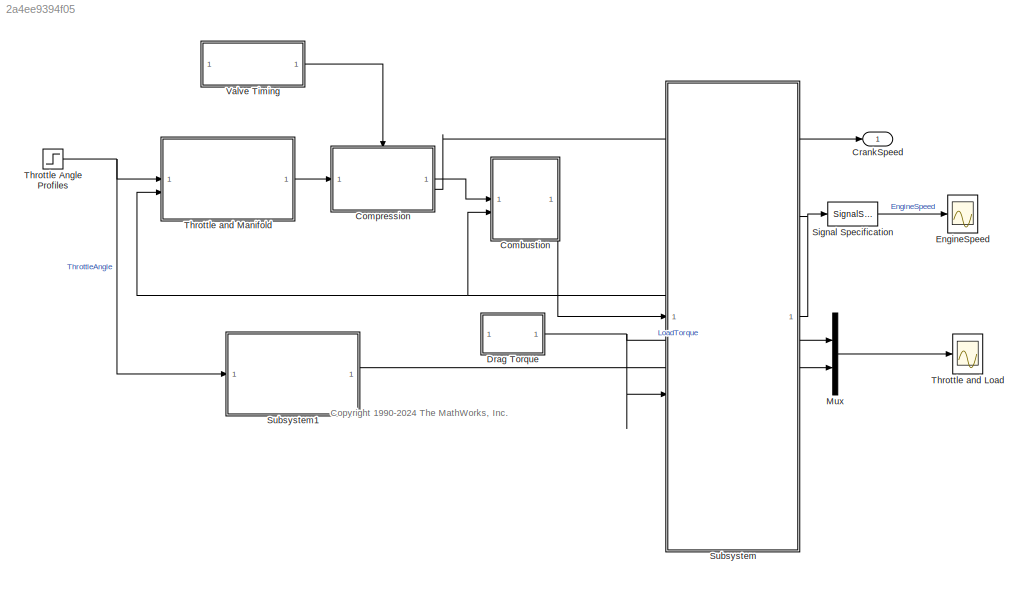
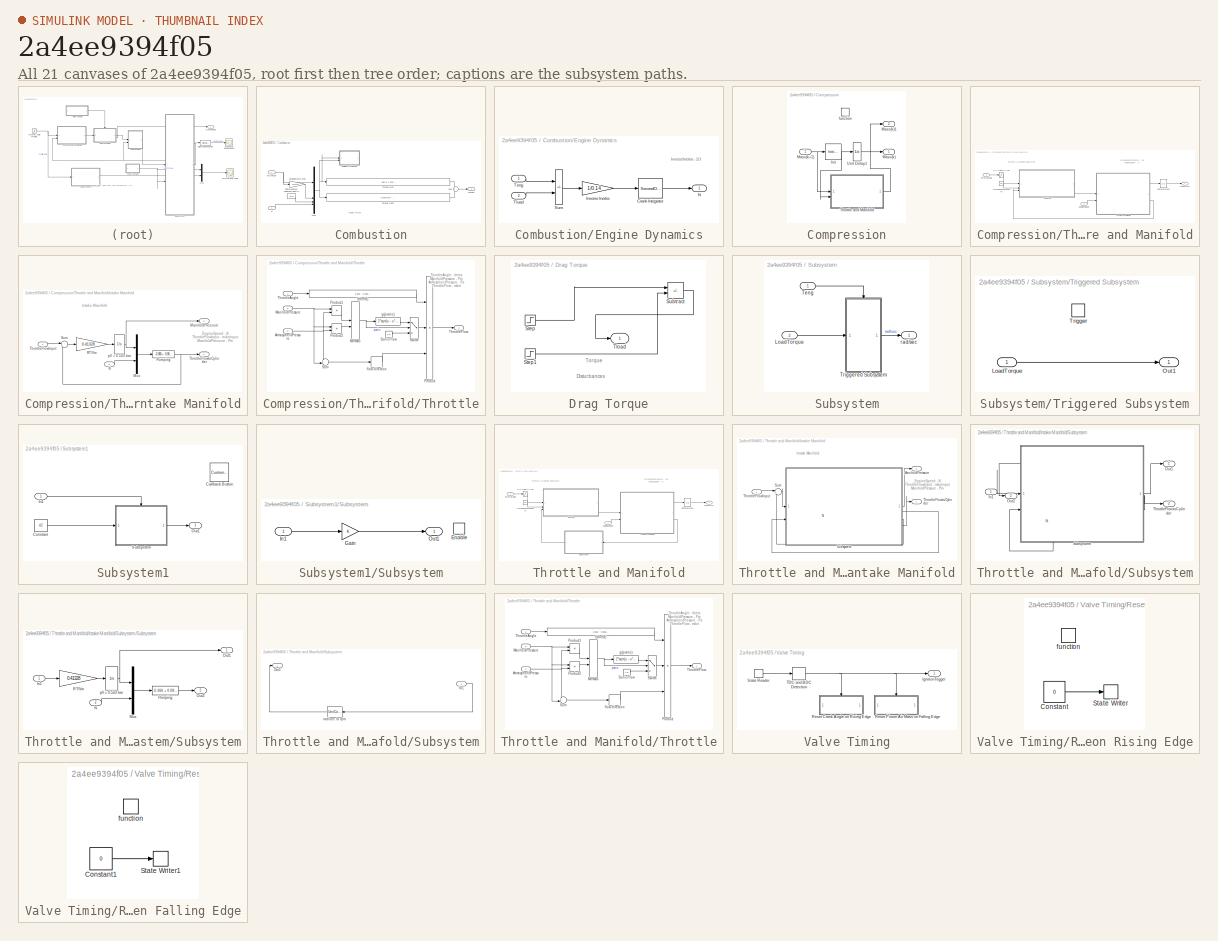
[diagram: thumbnail index - all 21 canvases of the model, root first then tree order]
MODEL slx_2a4ee9394f05
KIND model
CONFIG AbsTol = 1e-6
CONFIG EnableMultiTasking = off
CONFIG FixedStep = auto
CONFIG MaxStep = auto
CONFIG MinStep = auto
CONFIG RelTol = 1e-3
CONFIG SampleTimeConstraint = Unconstrained
CONFIG SolverName = ode45
CONFIG StartTime = 0.0
CONFIG StopTime = 9.9
BLOCK [SubSystem] Combustion
BLOCK [Inport] Combustion/AirCharge
BLOCK [SubSystem] Combustion/Engine Dynamics
BLOCK [SecondOrderIntegrator] Combustion/Engine Dynamics/Crank Integrator
  ICDXDT = 209.48
  ICX = 0
  ShowOutput = dxdt
  StateNameDXDT = 'CrankAngleVelocity'
  StateNameX = 'CrankAngle'
BLOCK [Gain] Combustion/Engine Dynamics/Inverse Inertia
  Gain = 1/0.14
  OutDataTypeStr = Inherit: Same as input
  ParamDataTypeStr = Inherit: Same as input
  SaturateOnIntegerOverflow = on
BLOCK [Outport] Combustion/Engine Dynamics/N
  InitialOutput = 0
  Unit = rad/sec
  VectorParamsAs1DForOutWhenUnconnected = off
BLOCK [Sum] Combustion/Engine Dynamics/Sum
  IconShape = rectangular
  InputSameDT = on
  Inputs = +-
  OutDataTypeStr = Inherit: Same as first input
  SaturateOnIntegerOverflow = on
BLOCK [Inport] Combustion/Engine Dynamics/Teng
BLOCK [Inport] Combustion/Engine Dynamics/Tload
  Port = 2
BLOCK [Mux] Combustion/Mux
  DisplayOption = bar
BLOCK [Inport] Combustion/N
  Port = 2
BLOCK [Constant] Combustion/SparkAdvance (degrees BTDC)
  Value = 15.0
BLOCK [Gain] Combustion/Stoichiometric Fuel
  Gain = 1/14.6
  OutDataTypeStr = Inherit: Same as input
  ParamDataTypeStr = Inherit: Same as input
  SaturateOnIntegerOverflow = on
BLOCK [Sum] Combustion/Sum
  InputSameDT = on
  OutDataTypeStr = Inherit: Same as first input
  SaturateOnIntegerOverflow = on
BLOCK [Outport] Combustion/Torque
  InitialOutput = 0
  VectorParamsAs1DForOutWhenUnconnected = off
BLOCK [Fcn] Combustion/Torque Gen
  Expr = -181.3 + 379.36*u[1] + 21.91*u[1]/u[2] - (0.85*u[1]*u[1])/(u[2]*u[2]) + 0.26*u[3] - 0.0028*u[3]*u[3]
BLOCK [Fcn] Combustion/Torque Gen2
  Expr = 0.027*u[4] - 0.000107*u[4]*u[4] + 0.00048*u[4]*u[3] + 2.55*u[3]*u[1] - 0.05*u[3]*u[3]*u[1]
BLOCK [SubSystem] Compression
  TreatAsAtomicUnit = on
BLOCK [InitialCondition] Compression/Init
  Value = 0.152
BLOCK [Outport] Compression/Mass(k)
  InitialOutput = 0.152
  VectorParamsAs1DForOutWhenUnconnected = off
BLOCK [Outport] Compression/Mass(k)1
  InitialOutput = 0.152
  Port = 2
  VectorParamsAs1DForOutWhenUnconnected = off
BLOCK [Inport] Compression/Mass(k+1)
BLOCK [SubSystem] Compression/Throttle and Manifold
BLOCK [Saturate] Compression/Throttle and Manifold/0 <= theta <= 90
  LowerLimit = 0
  NameLocation = top
  UpperLimit = 90
BLOCK [Constant] Compression/Throttle and Manifold/AtmosphericPressure
  Value = 1.0
BLOCK [Inport] Compression/Throttle and Manifold/EngineSpeed
  Port = 2
BLOCK [SubSystem] Compression/Throttle and Manifold/Intake Manifold
BLOCK [Outport] Compression/Throttle and Manifold/Intake Manifold/ManifoldPressure
  InitialOutput = 0
  Port = 2
  VectorParamsAs1DForOutWhenUnconnected = off
BLOCK [Mux] Compression/Throttle and Manifold/Intake Manifold/Mux
  DisplayOption = bar
  Inputs = 2
BLOCK [Inport] Compression/Throttle and Manifold/Intake Manifold/N
  Port = 2
  Unit = rad/sec
BLOCK [Fcn] Compression/Throttle and Manifold/Intake Manifold/Pumping
  Expr = -0.366 + 0.08979*u[1]*u[2] - 0.0337*u[2]*u[1]*u[1] + 0.0001*u[1]*u[2]*u[2]
BLOCK [Gain] Compression/Throttle and Manifold/Intake Manifold/RT//Vm
  Gain = 0.41328
  OutDataTypeStr = Inherit: Same as input
  ParamDataTypeStr = Inherit: Same as input
  SaturateOnIntegerOverflow = on
BLOCK [Sum] Compression/Throttle and Manifold/Intake Manifold/Sum
  InputSameDT = on
  Inputs = |+-
  OutDataTypeStr = Inherit: Same as first input
  SaturateOnIntegerOverflow = on
BLOCK [Inport] Compression/Throttle and Manifold/Intake Manifold/ThrottleFlowInput
BLOCK [Outport] Compression/Throttle and Manifold/Intake Manifold/ThrottleFlowtoCylinder 
  InitialOutput = 0
  Unit = g/s
  VectorParamsAs1DForOutWhenUnconnected = off
BLOCK [Integrator] Compression/Throttle and Manifold/Intake Manifold/p0 = 0.543 bar
  InitialCondition = .543
BLOCK [Outport] Compression/Throttle and Manifold/Mass(k+1)
  InitialOutput = 0
  VectorParamsAs1DForOutWhenUnconnected = off
BLOCK [Integrator] Compression/Throttle and Manifold/PistonAirMass
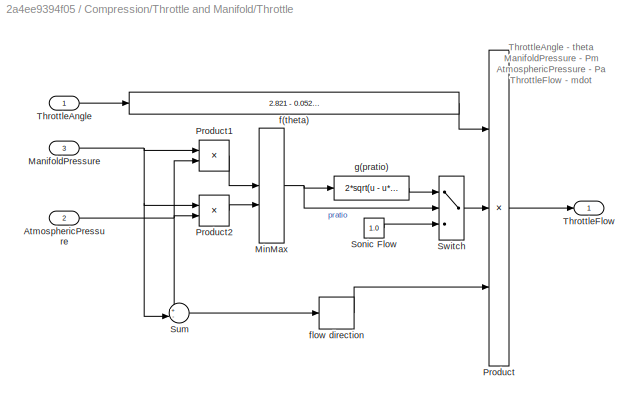
BLOCK [SubSystem] Compression/Throttle and Manifold/Throttle
BLOCK [Inport] Compression/Throttle and Manifold/Throttle/AtmosphericPressure 
  Port = 2
  Unit = bar
BLOCK [Inport] Compression/Throttle and Manifold/Throttle/ManifoldPressure
  Port = 3
  Unit = bar
BLOCK [MinMax] Compression/Throttle and Manifold/Throttle/MinMax
  InputSameDT = on
  Inputs = 2
  SaturateOnIntegerOverflow = on
BLOCK [Product] Compression/Throttle and Manifold/Throttle/Product
  InputSameDT = on
  Inputs = 3
  OutDataTypeStr = Inherit: Same as first input
  RndMeth = Zero
  SaturateOnIntegerOverflow = on
BLOCK [Product] Compression/Throttle and Manifold/Throttle/Product1
  InputSameDT = on
  Inputs = */
  OutDataTypeStr = Inherit: Same as first input
  RndMeth = Zero
  SaturateOnIntegerOverflow = on
BLOCK [Product] Compression/Throttle and Manifold/Throttle/Product2
  InputSameDT = on
  Inputs = /*
  OutDataTypeStr = Inherit: Same as first input
  RndMeth = Zero
  SaturateOnIntegerOverflow = on
BLOCK [Constant] Compression/Throttle and Manifold/Throttle/Sonic Flow 
  Value = 1.0
BLOCK [Sum] Compression/Throttle and Manifold/Throttle/Sum
  InputSameDT = on
  Inputs = +-|
  OutDataTypeStr = Inherit: Same as first input
  SaturateOnIntegerOverflow = on
BLOCK [Switch] Compression/Throttle and Manifold/Throttle/Switch
  Threshold = 0.5
BLOCK [Inport] Compression/Throttle and Manifold/Throttle/ThrottleAngle
  Unit = deg
BLOCK [Outport] Compression/Throttle and Manifold/Throttle/ThrottleFlow
  InitialOutput = 0
  Unit = g/s
  VectorParamsAs1DForOutWhenUnconnected = off
BLOCK [Fcn] Compression/Throttle and Manifold/Throttle/f(theta)
  Expr = 2.821 - 0.05231*u + 0.10299*u*u - 0.00063*u*u*u
  NameLocation = top
BLOCK [Signum] Compression/Throttle and Manifold/Throttle/flow direction
BLOCK [Fcn] Compression/Throttle and Manifold/Throttle/g(pratio)
  Expr = 2*sqrt(u - u*u)
  NameLocation = top
BLOCK [Inport] Compression/Throttle and Manifold/ThrottleAngle
  Unit = deg
BLOCK [UnitDelay] Compression/Unit Delay1
  HasFrameUpgradeWarning = on
  InitialCondition = 0.152
  SampleTime = -1
BLOCK [TriggerPort] Compression/function
  InitialTriggerSignalState = zero
  StatesWhenEnabling = held
  VariantControl = (inherit)
BLOCK [Outport] CrankSpeed
  InitialOutput = 0
  VectorParamsAs1DForOutWhenUnconnected = off
BLOCK [SubSystem] Drag Torque
BLOCK [Step] Drag Torque/Step
  After = 20
  Before = 25
  SampleTime = 0
  Time = 2
BLOCK [Step] Drag Torque/Step1
  After = 5
  SampleTime = 0
  Time = 8
BLOCK [Sum] Drag Torque/Subtract
  IconShape = rectangular
  Inputs = +-
BLOCK [Outport] Drag Torque/Tload
  InitialOutput = 0
  Unit = N*m
  VectorParamsAs1DForOutWhenUnconnected = off
BLOCK [Scope] EngineSpeed
  Floating = off
  NumInputPorts = 1
  ScopeSpecificationString = Simulink.scopes.TimeScopeBlockCfg('CurrentConfiguration', extmgr.ConfigurationSet(extmgr.Configuration('Core','General UI',true),extmgr.Configuration('Core','Source UI',true),extmgr.Configuration('Sources','WiredSimulink',true,'DataLoggingVariableName','ScopeData1','DataLoggingSaveFormat','Structure','DataLoggingDecimation','1','DataLoggingDecimateData',true),extmgr.Configuration('Visuals','Time D...<+1878ch>
BLOCK [Mux] Mux
  DisplayOption = bar
  Inputs = 2
BLOCK [SignalSpecification] Signal Specification
  Unit = rpm
BLOCK [SubSystem] Subsystem
BLOCK [Inport] Subsystem/LoadTorque
  Port = 2
BLOCK [Inport] Subsystem/Teng
BLOCK [SubSystem] Subsystem/Triggered Subsystem
  TreatAsAtomicUnit = on
BLOCK [Inport] Subsystem/Triggered Subsystem/LoadTorque
BLOCK [Outport] Subsystem/Triggered Subsystem/Out1
BLOCK [TriggerPort] Subsystem/Triggered Subsystem/Trigger
  StatesWhenEnabling = held
  VariantControl = (inherit)
BLOCK [Outport] Subsystem/rad//sec
BLOCK [SubSystem] Subsystem1
BLOCK [CustomCallbackButton] Subsystem1/Callback Button
  Configuration = {"components":[{"name":"BackgroundImageComponent","settings":{"image":{"size":[0,0],"src":"default","srcOrientation":"Right"},"position":[0,0,1,1]}},{"name":"ButtonStateComponent","settings":{"buttonType":"momentary","clickFcn":"showExample(\"simulink_automotive\/ModelingEngineTimingUsingTriggeredSubsystemsExample\")","onValue":1,"position":[0,0,1,1],"pressDelay":"500","pressFcn":"","repeatInterva...<+2076ch>
  CustomBackgroundColor = {"color":[0.9568627451,0.9568627451,0.9568627451],"show":true}
BLOCK [Constant] Subsystem1/Constant
  Value = 42
BLOCK [Inport] Subsystem1/In1
BLOCK [Outport] Subsystem1/Out1
BLOCK [SubSystem] Subsystem1/Subsystem
BLOCK [EnablePort] Subsystem1/Subsystem/Enable
BLOCK [Gain] Subsystem1/Subsystem/Gain
BLOCK [Inport] Subsystem1/Subsystem/In1
BLOCK [Outport] Subsystem1/Subsystem/Out1
BLOCK [Step] Throttle Angle Profiles 
  After = 11.93
  Before = 8.973
  SampleTime = 0
  Time = 5
BLOCK [Scope] Throttle and Load
  Floating = off
  NumInputPorts = 1
  ScopeSpecificationString = Simulink.scopes.TimeScopeBlockCfg('CurrentConfiguration', extmgr.ConfigurationSet(extmgr.Configuration('Core','General UI',true),extmgr.Configuration('Core','Source UI',true),extmgr.Configuration('Sources','WiredSimulink',true,'DataLoggingSaveFormat','Structure','DataLoggingDecimation','1','DataLoggingDecimateData',true),extmgr.Configuration('Visuals','Time Domain',true,'TimeAxisLabels','All','Ser...<+1771ch>
BLOCK [SubSystem] Throttle and Manifold
BLOCK [Saturate] Throttle and Manifold/0 <= theta <= 90
  LowerLimit = 0
  NameLocation = top
  UpperLimit = 90
BLOCK [Constant] Throttle and Manifold/AtmosphericPressure
  Value = 1.0
BLOCK [Inport] Throttle and Manifold/EngineSpeed
  Port = 2
BLOCK [SubSystem] Throttle and Manifold/Intake Manifold
BLOCK [Outport] Throttle and Manifold/Intake Manifold/ManifoldPressure
  InitialOutput = 0
  Port = 2
  VectorParamsAs1DForOutWhenUnconnected = off
BLOCK [Inport] Throttle and Manifold/Intake Manifold/N
  Port = 2
  Unit = rad/sec
BLOCK [SubSystem] Throttle and Manifold/Intake Manifold/Subsystem
BLOCK [Inport] Throttle and Manifold/Intake Manifold/Subsystem/In1
BLOCK [Inport] Throttle and Manifold/Intake Manifold/Subsystem/N
  Port = 2
  Unit = rad/sec
BLOCK [Outport] Throttle and Manifold/Intake Manifold/Subsystem/Out1
BLOCK [Outport] Throttle and Manifold/Intake Manifold/Subsystem/Out2
  Port = 2
BLOCK [SubSystem] Throttle and Manifold/Intake Manifold/Subsystem/Subsystem
BLOCK [Inport] Throttle and Manifold/Intake Manifold/Subsystem/Subsystem/In1
BLOCK [Mux] Throttle and Manifold/Intake Manifold/Subsystem/Subsystem/Mux
  DisplayOption = bar
  Inputs = 2
BLOCK [Inport] Throttle and Manifold/Intake Manifold/Subsystem/Subsystem/N
  Port = 2
  Unit = rad/sec
BLOCK [Outport] Throttle and Manifold/Intake Manifold/Subsystem/Subsystem/Out1
BLOCK [Outport] Throttle and Manifold/Intake Manifold/Subsystem/Subsystem/Out2
  Port = 2
BLOCK [Fcn] Throttle and Manifold/Intake Manifold/Subsystem/Subsystem/Pumping
  Expr = -0.366 + 0.08979*u[1]*u[2] - 0.0337*u[2]*u[1]*u[1] + 0.0001*u[1]*u[2]*u[2]
BLOCK [Gain] Throttle and Manifold/Intake Manifold/Subsystem/Subsystem/RT//Vm
  Gain = 0.41328
  OutDataTypeStr = Inherit: Same as input
  ParamDataTypeStr = Inherit: Same as input
  SaturateOnIntegerOverflow = on
BLOCK [Integrator] Throttle and Manifold/Intake Manifold/Subsystem/Subsystem/p0 = 0.543 bar
  InitialCondition = .543
BLOCK [Outport] Throttle and Manifold/Intake Manifold/Subsystem/ThrottleFlowtoCylinder 
  InitialOutput = 0
  Port = 3
  Unit = g/s
  VectorParamsAs1DForOutWhenUnconnected = off
BLOCK [Sum] Throttle and Manifold/Intake Manifold/Sum
  InputSameDT = on
  Inputs = |+-
  OutDataTypeStr = Inherit: Same as first input
  SaturateOnIntegerOverflow = on
BLOCK [Inport] Throttle and Manifold/Intake Manifold/ThrottleFlowInput
BLOCK [Outport] Throttle and Manifold/Intake Manifold/ThrottleFlowtoCylinder 
  InitialOutput = 0
  Unit = g/s
  VectorParamsAs1DForOutWhenUnconnected = off
BLOCK [Outport] Throttle and Manifold/Mass(k+1)
  InitialOutput = 0
  VectorParamsAs1DForOutWhenUnconnected = off
BLOCK [Integrator] Throttle and Manifold/PistonAirMass
BLOCK [SubSystem] Throttle and Manifold/Subsystem
BLOCK [Inport] Throttle and Manifold/Subsystem/In1
BLOCK [Outport] Throttle and Manifold/Subsystem/Out1
BLOCK [UnitConversion] Throttle and Manifold/Subsystem/rad//sec to rpm
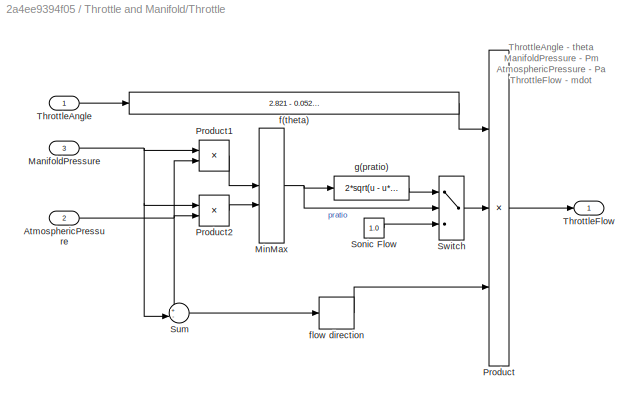
BLOCK [SubSystem] Throttle and Manifold/Throttle
BLOCK [Inport] Throttle and Manifold/Throttle/AtmosphericPressure 
  Port = 2
  Unit = bar
BLOCK [Inport] Throttle and Manifold/Throttle/ManifoldPressure
  Port = 3
  Unit = bar
BLOCK [MinMax] Throttle and Manifold/Throttle/MinMax
  InputSameDT = on
  Inputs = 2
  SaturateOnIntegerOverflow = on
BLOCK [Product] Throttle and Manifold/Throttle/Product
  InputSameDT = on
  Inputs = 3
  OutDataTypeStr = Inherit: Same as first input
  RndMeth = Zero
  SaturateOnIntegerOverflow = on
BLOCK [Product] Throttle and Manifold/Throttle/Product1
  InputSameDT = on
  Inputs = */
  OutDataTypeStr = Inherit: Same as first input
  RndMeth = Zero
  SaturateOnIntegerOverflow = on
BLOCK [Product] Throttle and Manifold/Throttle/Product2
  InputSameDT = on
  Inputs = /*
  OutDataTypeStr = Inherit: Same as first input
  RndMeth = Zero
  SaturateOnIntegerOverflow = on
BLOCK [Constant] Throttle and Manifold/Throttle/Sonic Flow 
  Value = 1.0
BLOCK [Sum] Throttle and Manifold/Throttle/Sum
  InputSameDT = on
  Inputs = +-|
  OutDataTypeStr = Inherit: Same as first input
  SaturateOnIntegerOverflow = on
BLOCK [Switch] Throttle and Manifold/Throttle/Switch
  Threshold = 0.5
BLOCK [Inport] Throttle and Manifold/Throttle/ThrottleAngle
  Unit = deg
BLOCK [Outport] Throttle and Manifold/Throttle/ThrottleFlow
  InitialOutput = 0
  Unit = g/s
  VectorParamsAs1DForOutWhenUnconnected = off
BLOCK [Fcn] Throttle and Manifold/Throttle/f(theta)
  Expr = 2.821 - 0.05231*u + 0.10299*u*u - 0.00063*u*u*u
  NameLocation = top
BLOCK [Signum] Throttle and Manifold/Throttle/flow direction
BLOCK [Fcn] Throttle and Manifold/Throttle/g(pratio)
  Expr = 2*sqrt(u - u*u)
  NameLocation = top
BLOCK [Inport] Throttle and Manifold/ThrottleAngle
  Unit = deg
BLOCK [SubSystem] Valve Timing
  ExecutionOrder = First
  TreatAsAtomicUnit = on
BLOCK [Outport] Valve Timing/IgnitionTrigger
BLOCK [SubSystem] Valve Timing/Reset Crank Angle on Rising Edge
  TreatAsAtomicUnit = on
BLOCK [Constant] Valve Timing/Reset Crank Angle on Rising Edge/Constant
  Value = 0
BLOCK [StateWriter] Valve Timing/Reset Crank Angle on Rising Edge/State Writer
BLOCK [TriggerPort] Valve Timing/Reset Crank Angle on Rising Edge/function
  InitialTriggerSignalState = zero
  StatesWhenEnabling = held
  VariantControl = (inherit)
BLOCK [SubSystem] Valve Timing/Reset Piston Air Mass on Falling Edge
  TreatAsAtomicUnit = on
BLOCK [Constant] Valve Timing/Reset Piston Air Mass on Falling Edge/Constant1
  Value = 0
BLOCK [StateWriter] Valve Timing/Reset Piston Air Mass on Falling Edge/State Writer1
  StateOwnerBlock = ../../../Throttle and Manifold/PistonAirMass
BLOCK [TriggerPort] Valve Timing/Reset Piston Air Mass on Falling Edge/function
  InitialTriggerSignalState = zero
  StatesWhenEnabling = held
  TriggerType = falling
  VariantControl = (inherit)
BLOCK [StateReader] Valve Timing/State Reader
BLOCK [HitCross] Valve Timing/TDC and BDC Detection
  HitCrossingDirection = rising
  HitCrossingOffset = pi
ANNOTATION (root): <copyright redacted>
ANNOTATION Combustion: Engine Torque
ANNOTATION Combustion/Engine Dynamics: InverseInertia - 1/J
ANNOTATION Compression/Throttle and Manifold: AtmosphericPressure - Pa EngineSpeed - N
ANNOTATION Compression/Throttle and Manifold: Throttle & Manifold Subsystem
ANNOTATION Compression/Throttle and Manifold/Intake Manifold: EngineSpeed - N ThrottleFlowInput - mdotinput ManifoldPressure - Pm
ANNOTATION Compression/Throttle and Manifold/Intake Manifold: Intake Manifold
ANNOTATION Compression/Throttle and Manifold/Throttle: ThrottleAngle - theta ManifoldPressure - Pm AtmosphericPressure - Pa ThrottleFlow - mdot
ANNOTATION Drag Torque: Disturbances
ANNOTATION Drag Torque: Torque
ANNOTATION Throttle and Manifold: AtmosphericPressure - Pa EngineSpeed - N
ANNOTATION Throttle and Manifold: Throttle & Manifold Subsystem
ANNOTATION Throttle and Manifold/Intake Manifold: EngineSpeed - N ThrottleFlowInput - mdotinput ManifoldPressure - Pm
ANNOTATION Throttle and Manifold/Intake Manifold: Intake Manifold
ANNOTATION Throttle and Manifold/Throttle: ThrottleAngle - theta ManifoldPressure - Pm AtmosphericPressure - Pa ThrottleFlow - mdot
NET Combustion/AirCharge:1 -> Combustion/Mux:1, Combustion/Stoichiometric Fuel:1
LINE Combustion/Engine Dynamics/Crank Integrator:1 -> Combustion/Engine Dynamics/N:1
LINE Combustion/Engine Dynamics/Inverse Inertia:1 -> Combustion/Engine Dynamics/Crank Integrator:1
LINE Combustion/Engine Dynamics/Sum:1 -> Combustion/Engine Dynamics/Inverse Inertia:1
LINE Combustion/Engine Dynamics/Teng:1 -> Combustion/Engine Dynamics/Sum:1
LINE Combustion/Engine Dynamics/Tload:1 -> Combustion/Engine Dynamics/Sum:2
NET Combustion/Mux:1 -> Combustion/Engine Dynamics:1, Combustion/Engine Dynamics:2, Combustion/Torque Gen2:1, Combustion/Torque Gen:1
LINE Combustion/N:1 -> Combustion/Mux:4
LINE Combustion/SparkAdvance (degrees BTDC):1 -> Combustion/Mux:3
LINE Combustion/Stoichiometric Fuel:1 -> Combustion/Mux:2
LINE Combustion/Sum:1 -> Combustion/Torque:1
LINE Combustion/Torque Gen2:1 -> Combustion/Sum:2
LINE Combustion/Torque Gen:1 -> Combustion/Sum:1
LINE Combustion:1 -> Subsystem:1
NET Compression/Init:1 -> Compression/Throttle and Manifold:2, Compression/Unit Delay1:1
NET Compression/Mass(k+1):1 -> Compression/Init:1, Compression/Throttle and Manifold:1
LINE Compression/Throttle and Manifold/0 <= theta <= 90:1 -> Compression/Throttle and Manifold/Throttle:1
LINE Compression/Throttle and Manifold/AtmosphericPressure:1 -> Compression/Throttle and Manifold/Throttle:2
LINE Compression/Throttle and Manifold/EngineSpeed:1 -> Compression/Throttle and Manifold/Intake Manifold:2
LINE Compression/Throttle and Manifold/Intake Manifold/Mux:1 -> Compression/Throttle and Manifold/Intake Manifold/Pumping:1
LINE Compression/Throttle and Manifold/Intake Manifold/N:1 -> Compression/Throttle and Manifold/Intake Manifold/Mux:2
NET Compression/Throttle and Manifold/Intake Manifold/Pumping:1 -> Compression/Throttle and Manifold/Intake Manifold/Sum:2, Compression/Throttle and Manifold/Intake Manifold/ThrottleFlowtoCylinder :1
LINE Compression/Throttle and Manifold/Intake Manifold/RT//Vm:1 -> Compression/Throttle and Manifold/Intake Manifold/p0 = 0.543 bar:1
LINE Compression/Throttle and Manifold/Intake Manifold/Sum:1 -> Compression/Throttle and Manifold/Intake Manifold/RT//Vm:1
LINE Compression/Throttle and Manifold/Intake Manifold/ThrottleFlowInput:1 -> Compression/Throttle and Manifold/Intake Manifold/Sum:1
NET Compression/Throttle and Manifold/Intake Manifold/p0 = 0.543 bar:1 -> Compression/Throttle and Manifold/Intake Manifold/ManifoldPressure:1, Compression/Throttle and Manifold/Intake Manifold/Mux:1
LINE Compression/Throttle and Manifold/Intake Manifold:1 -> Compression/Throttle and Manifold/PistonAirMass:1
LINE Compression/Throttle and Manifold/Intake Manifold:2 -> Compression/Throttle and Manifold/Throttle:3
LINE Compression/Throttle and Manifold/PistonAirMass:1 -> Compression/Throttle and Manifold/Mass(k+1):1
NET Compression/Throttle and Manifold/Throttle/AtmosphericPressure :1 -> Compression/Throttle and Manifold/Throttle/Product1:2, Compression/Throttle and Manifold/Throttle/Product2:2, Compression/Throttle and Manifold/Throttle/Sum:1
NET Compression/Throttle and Manifold/Throttle/ManifoldPressure:1 -> Compression/Throttle and Manifold/Throttle/Product1:1, Compression/Throttle and Manifold/Throttle/Product2:1, Compression/Throttle and Manifold/Throttle/Sum:2
NET Compression/Throttle and Manifold/Throttle/MinMax:1 -> Compression/Throttle and Manifold/Throttle/Switch:2, Compression/Throttle and Manifold/Throttle/g(pratio):1
LINE Compression/Throttle and Manifold/Throttle/Product1:1 -> Compression/Throttle and Manifold/Throttle/MinMax:1
LINE Compression/Throttle and Manifold/Throttle/Product2:1 -> Compression/Throttle and Manifold/Throttle/MinMax:2
LINE Compression/Throttle and Manifold/Throttle/Product:1 -> Compression/Throttle and Manifold/Throttle/ThrottleFlow:1
LINE Compression/Throttle and Manifold/Throttle/Sonic Flow :1 -> Compression/Throttle and Manifold/Throttle/Switch:3
LINE Compression/Throttle and Manifold/Throttle/Sum:1 -> Compression/Throttle and Manifold/Throttle/flow direction:1
LINE Compression/Throttle and Manifold/Throttle/Switch:1 -> Compression/Throttle and Manifold/Throttle/Product:2
LINE Compression/Throttle and Manifold/Throttle/ThrottleAngle:1 -> Compression/Throttle and Manifold/Throttle/f(theta):1
LINE Compression/Throttle and Manifold/Throttle/f(theta):1 -> Compression/Throttle and Manifold/Throttle/Product:1
LINE Compression/Throttle and Manifold/Throttle/flow direction:1 -> Compression/Throttle and Manifold/Throttle/Product:3
LINE Compression/Throttle and Manifold/Throttle/g(pratio):1 -> Compression/Throttle and Manifold/Throttle/Switch:1
LINE Compression/Throttle and Manifold/Throttle:1 -> Compression/Throttle and Manifold/Intake Manifold:1
LINE Compression/Throttle and Manifold/ThrottleAngle:1 -> Compression/Throttle and Manifold/0 <= theta <= 90:1
LINE Compression/Throttle and Manifold:1 -> Compression/Mass(k)1:1
LINE Compression/Unit Delay1:1 -> Compression/Mass(k):1
LINE Compression:1 -> Combustion:1
LINE Compression:2 -> CrankSpeed:1
LINE Drag Torque/Step1:1 -> Drag Torque/Subtract:2
LINE Drag Torque/Step:1 -> Drag Torque/Subtract:1
LINE Drag Torque/Subtract:1 -> Drag Torque/Tload:1
NET Drag Torque:1 -> Mux:1, Subsystem:2
LINE Mux:1 -> Throttle and Load:1
LINE Signal Specification:1 -> EngineSpeed:1
LINE Subsystem/LoadTorque:1 -> Subsystem/Triggered Subsystem:1
LINE Subsystem/Teng:1 -> Subsystem/Triggered Subsystem:trigger
LINE Subsystem/Triggered Subsystem/LoadTorque:1 -> Subsystem/Triggered Subsystem/Out1:1
LINE Subsystem/Triggered Subsystem:1 -> Subsystem/rad//sec:1
LINE Subsystem1/Constant:1 -> Subsystem1/Subsystem:1
LINE Subsystem1/In1:1 -> Subsystem1/Subsystem:enable
LINE Subsystem1/Subsystem/Gain:1 -> Subsystem1/Subsystem/Out1:1
LINE Subsystem1/Subsystem/In1:1 -> Subsystem1/Subsystem/Gain:1
LINE Subsystem1/Subsystem:1 -> Subsystem1/Out1:1
LINE Subsystem1:1 -> Mux:2
NET Subsystem:1 -> Combustion:2, Signal Specification:1, Throttle and Manifold:2
NET Throttle Angle Profiles :1 -> Subsystem1:1, Throttle and Manifold:1
LINE Throttle and Manifold/0 <= theta <= 90:1 -> Throttle and Manifold/Throttle:1
LINE Throttle and Manifold/AtmosphericPressure:1 -> Throttle and Manifold/Throttle:2
LINE Throttle and Manifold/EngineSpeed:1 -> Throttle and Manifold/Intake Manifold:2
LINE Throttle and Manifold/Intake Manifold/N:1 -> Throttle and Manifold/Intake Manifold/Subsystem:2
LINE Throttle and Manifold/Intake Manifold/Subsystem/In1:1 -> Throttle and Manifold/Intake Manifold/Subsystem/Subsystem:1
LINE Throttle and Manifold/Intake Manifold/Subsystem/N:1 -> Throttle and Manifold/Intake Manifold/Subsystem/Subsystem:2
LINE Throttle and Manifold/Intake Manifold/Subsystem/Subsystem/In1:1 -> Throttle and Manifold/Intake Manifold/Subsystem/Subsystem/RT//Vm:1
LINE Throttle and Manifold/Intake Manifold/Subsystem/Subsystem/Mux:1 -> Throttle and Manifold/Intake Manifold/Subsystem/Subsystem/Pumping:1
LINE Throttle and Manifold/Intake Manifold/Subsystem/Subsystem/N:1 -> Throttle and Manifold/Intake Manifold/Subsystem/Subsystem/Mux:2
LINE Throttle and Manifold/Intake Manifold/Subsystem/Subsystem/Pumping:1 -> Throttle and Manifold/Intake Manifold/Subsystem/Subsystem/Out2:1
LINE Throttle and Manifold/Intake Manifold/Subsystem/Subsystem/RT//Vm:1 -> Throttle and Manifold/Intake Manifold/Subsystem/Subsystem/p0 = 0.543 bar:1
NET Throttle and Manifold/Intake Manifold/Subsystem/Subsystem/p0 = 0.543 bar:1 -> Throttle and Manifold/Intake Manifold/Subsystem/Subsystem/Mux:1, Throttle and Manifold/Intake Manifold/Subsystem/Subsystem/Out1:1
LINE Throttle and Manifold/Intake Manifold/Subsystem/Subsystem:1 -> Throttle and Manifold/Intake Manifold/Subsystem/Out1:1
NET Throttle and Manifold/Intake Manifold/Subsystem/Subsystem:2 -> Throttle and Manifold/Intake Manifold/Subsystem/Out2:1, Throttle and Manifold/Intake Manifold/Subsystem/ThrottleFlowtoCylinder :1
LINE Throttle and Manifold/Intake Manifold/Subsystem:1 -> Throttle and Manifold/Intake Manifold/ManifoldPressure:1
LINE Throttle and Manifold/Intake Manifold/Subsystem:2 -> Throttle and Manifold/Intake Manifold/Sum:2
LINE Throttle and Manifold/Intake Manifold/Subsystem:3 -> Throttle and Manifold/Intake Manifold/ThrottleFlowtoCylinder :1
LINE Throttle and Manifold/Intake Manifold/Sum:1 -> Throttle and Manifold/Intake Manifold/Subsystem:1
LINE Throttle and Manifold/Intake Manifold/ThrottleFlowInput:1 -> Throttle and Manifold/Intake Manifold/Sum:1
LINE Throttle and Manifold/Intake Manifold:1 -> Throttle and Manifold/PistonAirMass:1
LINE Throttle and Manifold/Intake Manifold:2 -> Throttle and Manifold/Subsystem:1
LINE Throttle and Manifold/PistonAirMass:1 -> Throttle and Manifold/Mass(k+1):1
LINE Throttle and Manifold/Subsystem/In1:1 -> Throttle and Manifold/Subsystem/rad//sec to rpm:1
LINE Throttle and Manifold/Subsystem/rad//sec to rpm:1 -> Throttle and Manifold/Subsystem/Out1:1
LINE Throttle and Manifold/Subsystem:1 -> Throttle and Manifold/Throttle:3
NET Throttle and Manifold/Throttle/AtmosphericPressure :1 -> Throttle and Manifold/Throttle/Product1:2, Throttle and Manifold/Throttle/Product2:2, Throttle and Manifold/Throttle/Sum:1
NET Throttle and Manifold/Throttle/ManifoldPressure:1 -> Throttle and Manifold/Throttle/Product1:1, Throttle and Manifold/Throttle/Product2:1, Throttle and Manifold/Throttle/Sum:2
NET Throttle and Manifold/Throttle/MinMax:1 -> Throttle and Manifold/Throttle/Switch:2, Throttle and Manifold/Throttle/g(pratio):1
LINE Throttle and Manifold/Throttle/Product1:1 -> Throttle and Manifold/Throttle/MinMax:1
LINE Throttle and Manifold/Throttle/Product2:1 -> Throttle and Manifold/Throttle/MinMax:2
LINE Throttle and Manifold/Throttle/Product:1 -> Throttle and Manifold/Throttle/ThrottleFlow:1
LINE Throttle and Manifold/Throttle/Sonic Flow :1 -> Throttle and Manifold/Throttle/Switch:3
LINE Throttle and Manifold/Throttle/Sum:1 -> Throttle and Manifold/Throttle/flow direction:1
LINE Throttle and Manifold/Throttle/Switch:1 -> Throttle and Manifold/Throttle/Product:2
LINE Throttle and Manifold/Throttle/ThrottleAngle:1 -> Throttle and Manifold/Throttle/f(theta):1
LINE Throttle and Manifold/Throttle/f(theta):1 -> Throttle and Manifold/Throttle/Product:1
LINE Throttle and Manifold/Throttle/flow direction:1 -> Throttle and Manifold/Throttle/Product:3
LINE Throttle and Manifold/Throttle/g(pratio):1 -> Throttle and Manifold/Throttle/Switch:1
LINE Throttle and Manifold/Throttle:1 -> Throttle and Manifold/Intake Manifold:1
LINE Throttle and Manifold/ThrottleAngle:1 -> Throttle and Manifold/0 <= theta <= 90:1
LINE Throttle and Manifold:1 -> Compression:1
LINE Valve Timing/Reset Crank Angle on Rising Edge/Constant:1 -> Valve Timing/Reset Crank Angle on Rising Edge/State Writer:1
LINE Valve Timing/Reset Piston Air Mass on Falling Edge/Constant1:1 -> Valve Timing/Reset Piston Air Mass on Falling Edge/State Writer1:1
LINE Valve Timing/State Reader:1 -> Valve Timing/TDC and BDC Detection:1
NET Valve Timing/TDC and BDC Detection:1 -> Valve Timing/IgnitionTrigger:1, Valve Timing/Reset Crank Angle on Rising Edge:trigger, Valve Timing/Reset Piston Air Mass on Falling Edge:trigger
LINE Valve Timing:1 -> Compression:trigger
note: NET lines group one-source signal fan-out (src -> all destinations, sorted); 1:1 wires keep LINE
